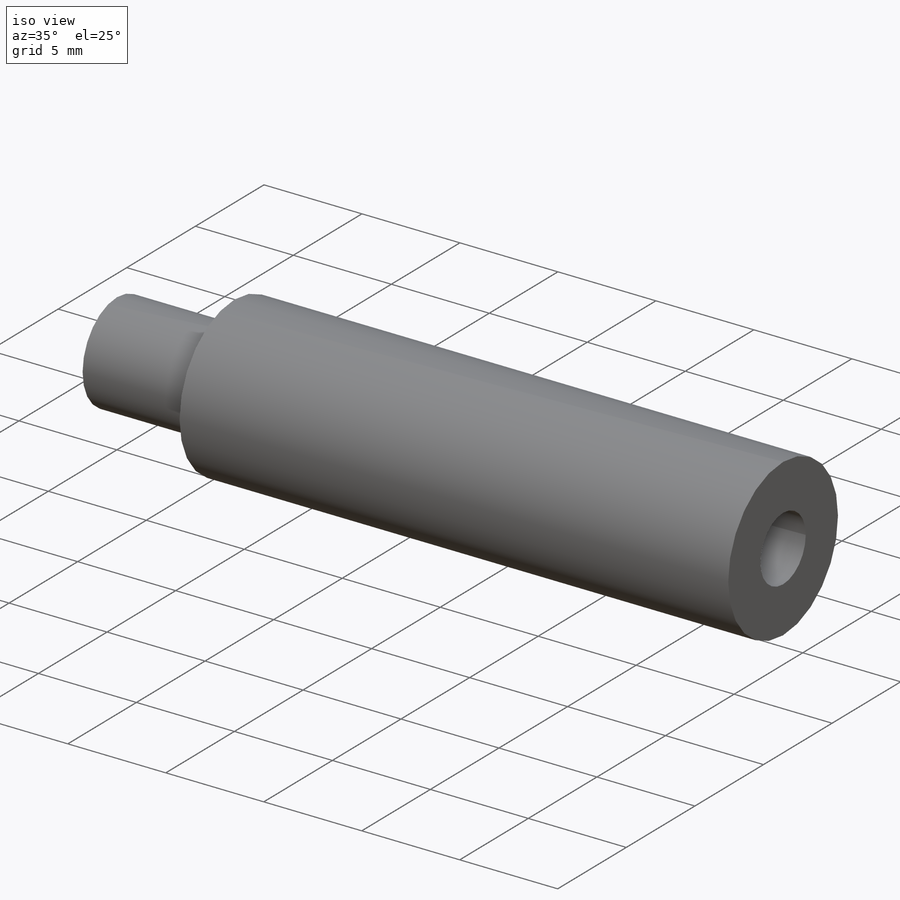
[diagram: iso view]
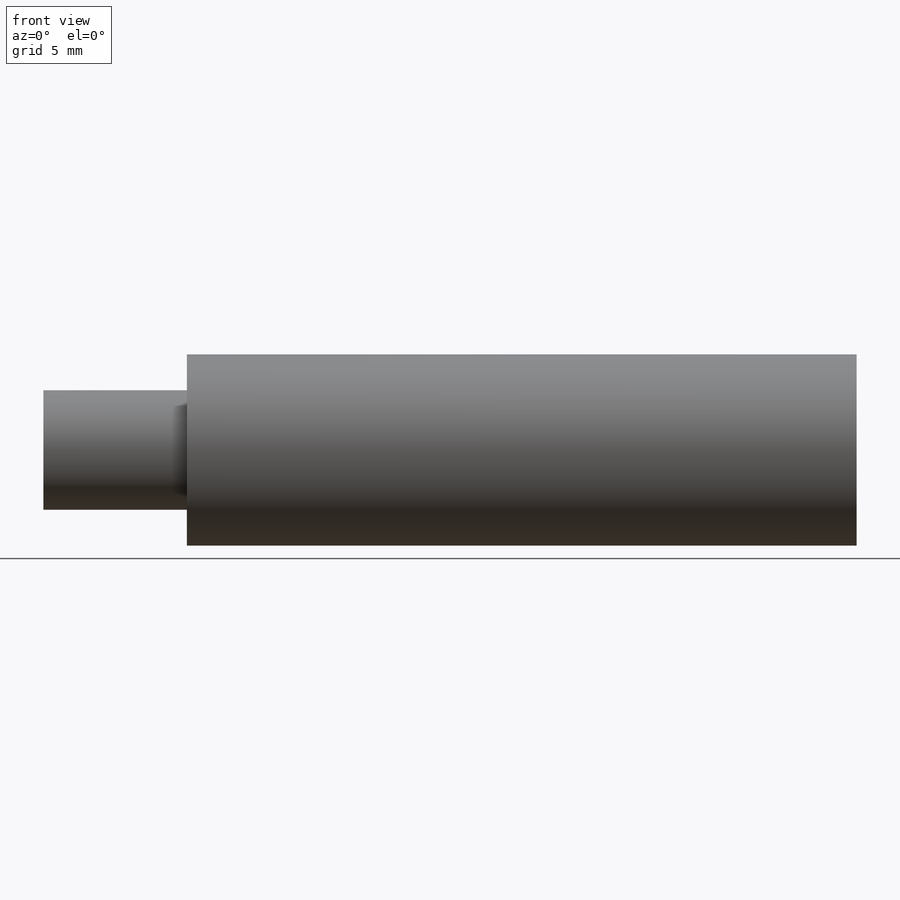
[diagram: front view]
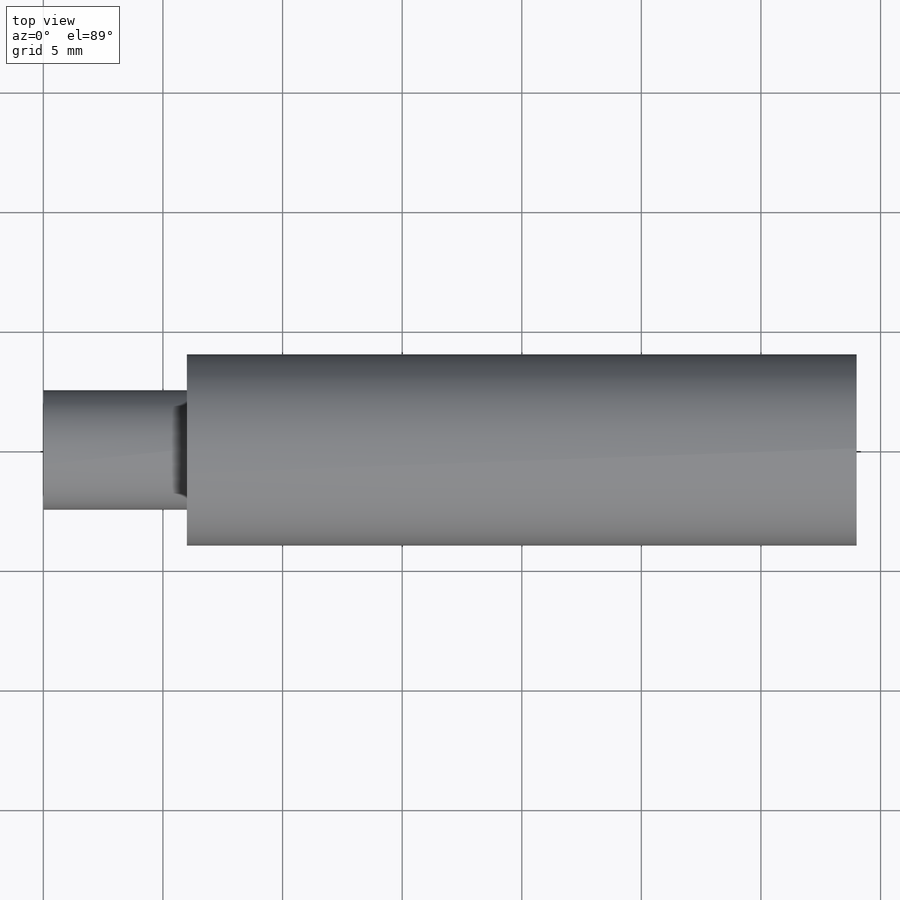
[diagram: top view]
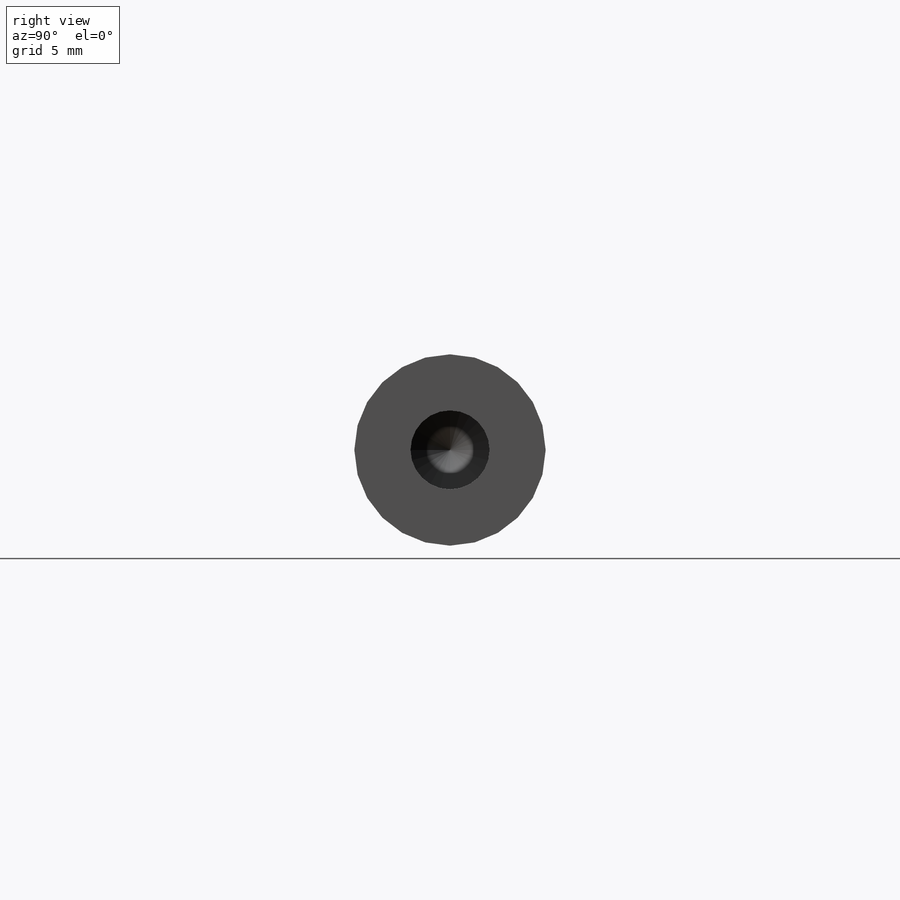
[diagram: right view]
SOLIDWORKS PART (.sldprt)
format: sldprt  version: not decoded by parser v0  size: 151,552 bytes
history: native  units: mm
features: plane x3, sketch x3, material x1, revolve x1, hole x1, thread x1 (+12 scaffold rows collapsed)
feature tree (22):
  scaffold x12  (default folders/planes/origin — collapsed)
  material  "Alliage 7079"
  plane  "Face"
  plane  "Dessus"
  plane  "Droite"
  sketch  "Esquisse1"  dims[D1=2.5mm D2=4.0mm D3=34.0mm D4=28.0mm]
  revolve  "Révolution1"  Angle=360deg
  hole  "Trou taraudé M41"  Diameter=3.3mm Depth=25mm
  sketch  "Esquisse3"
  sketch  "Esquisse2"  dims[hole-wizard template sketch: 47 standard entries collapsed; hole parameters kept: c15.Profondeur du trou pour taraudage=25.0mm c15.D3=~14.816244mm c15.Angle de pointe=118.0deg]
  thread  "Filetage de perçage1"  Diameter=10mm  [1 undecoded]
decode coverage: 5 of 6 modeling features carry decoded parameters
note: ~ marks probable driven/reference dimensions
note: 1 parameter value undecoded
note: suppression state not decoded; provenance and decode notes live in map.json
